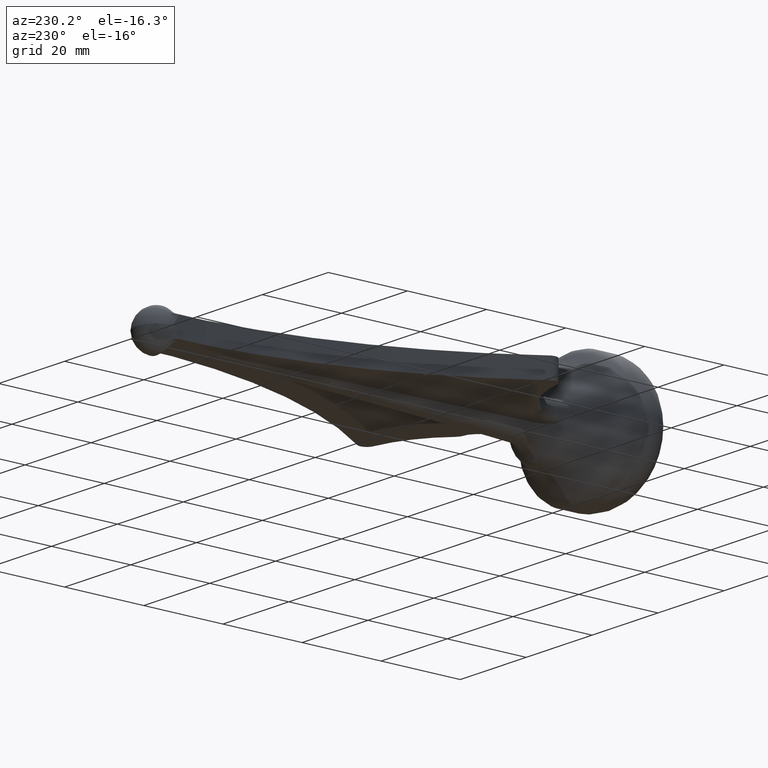
[diagram: clean part render]
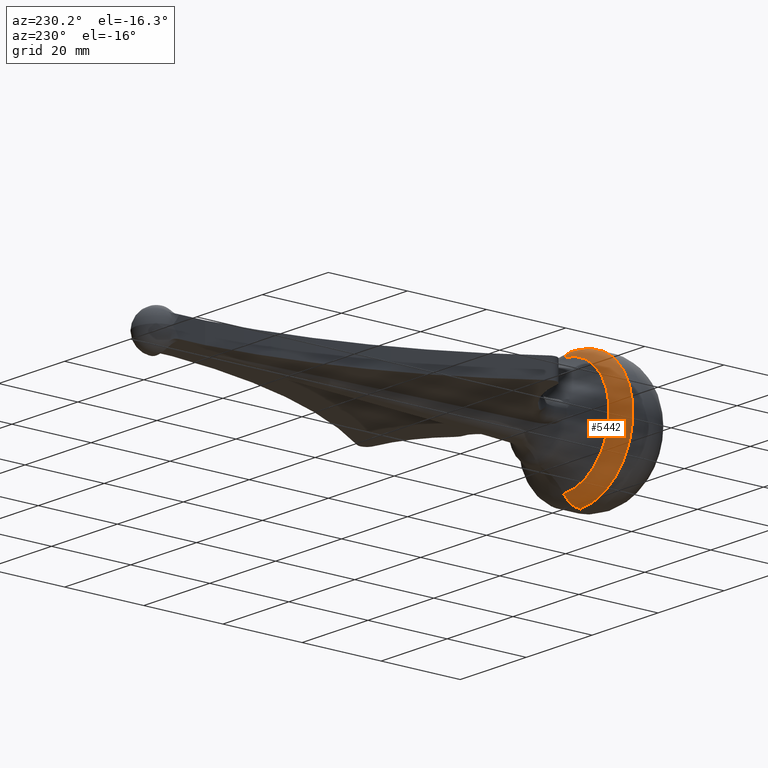
[diagram: same view with one face highlighted and labeled with its STEP entity id]
A machine part, auxiliary view. The second image highlights one B-rep face of the part: STEP entity #5442.
In plain terms, the highlighted toroidal blend (fillet) surface has major radius 11 mm and minor (blend) radius 5 mm.
Its self-contained STEP definition (entity closure, byte-faithful):
#256 = CIRCLE ( 'NONE', #6619, 4.999999999999999100 ) ;
#746 = EDGE_LOOP ( 'NONE', ( #6859, #11202, #3173, #9484 ) ) ;
#860 = CARTESIAN_POINT ( 'NONE',  ( 0.0000000000000000000, 12.98750096883720000, 16.00000000000000000 ) ) ;
#900 = DIRECTION ( 'NONE',  ( -1.000000000000000000, 0.0000000000000000000, 0.0000000000000000000 ) ) ;
#1040 = FACE_OUTER_BOUND ( 'NONE', #746, .T. ) ;
#2122 = CIRCLE ( 'NONE', #4521, 4.999999999999999100 ) ;
#2298 = DIRECTION ( 'NONE',  ( 0.0000000000000000000, 0.0000000000000000000, 1.000000000000000000 ) ) ;
#2560 = CARTESIAN_POINT ( 'NONE',  ( 0.0000000000000000000, 17.15495492610014900, 0.0000000000000000000 ) ) ;
#2737 = CIRCLE ( 'NONE', #6699, 13.76266673960028100 ) ;
#2742 = DIRECTION ( 'NONE',  ( -0.0000000000000000000, -1.000000000000000000, -0.0000000000000000000 ) ) ;
#2865 = EDGE_CURVE ( 'NONE', #5216, #7063, #2737, .T. ) ;
#3173 = ORIENTED_EDGE ( 'NONE', *, *, #9253, .T. ) ;
#3369 = AXIS2_PLACEMENT_3D ( 'NONE', #11018, #7699, #2298 ) ;
#3397 = CARTESIAN_POINT ( 'NONE',  ( 1.685440577038321800E-015, 17.15495492610014900, 13.76266673960027700 ) ) ;
#3463 = DIRECTION ( 'NONE',  ( 0.0000000000000000000, 0.0000000000000000000, 1.000000000000000000 ) ) ;
#3486 = DIRECTION ( 'NONE',  ( 1.000000000000000000, -0.0000000000000000000, 1.224646799147353200E-016 ) ) ;
#3850 = AXIS2_PLACEMENT_3D ( 'NONE', #8132, #2742, #8979 ) ;
#4246 = EDGE_CURVE ( 'NONE', #4950, #10707, #8620, .T. ) ;
#4521 = AXIS2_PLACEMENT_3D ( 'NONE', #8833, #3486, #9658 ) ;
#4792 = CARTESIAN_POINT ( 'NONE',  ( 0.0000000000000000000, 17.15495492610014900, -13.76266673960027700 ) ) ;
#4846 = CARTESIAN_POINT ( 'NONE',  ( 1.959434878635765100E-015, 12.98750096883720000, -16.00000000000000000 ) ) ;
#4950 = VERTEX_POINT ( 'NONE', #860 ) ;
#5216 = VERTEX_POINT ( 'NONE', #4792 ) ;
#5442 = ADVANCED_FACE ( 'NONE', ( #1040 ), #5994, .T. ) ;
#5994 = TOROIDAL_SURFACE ( 'NONE', #3369, 11.00000000000000900, 5.000000000000000000 ) ;
#6349 = CARTESIAN_POINT ( 'NONE',  ( 0.0000000000000000000, 12.98750096883720000, 11.00000000000000900 ) ) ;
#6619 = AXIS2_PLACEMENT_3D ( 'NONE', #6349, #900, #7249 ) ;
#6699 = AXIS2_PLACEMENT_3D ( 'NONE', #2560, #8819, #3463 ) ;
#6859 = ORIENTED_EDGE ( 'NONE', *, *, #7082, .F. ) ;
#7063 = VERTEX_POINT ( 'NONE', #3397 ) ;
#7082 = EDGE_CURVE ( 'NONE', #10707, #5216, #2122, .T. ) ;
#7249 = DIRECTION ( 'NONE',  ( 0.0000000000000000000, 0.0000000000000000000, 1.000000000000000000 ) ) ;
#7699 = DIRECTION ( 'NONE',  ( 0.0000000000000000000, 1.000000000000000000, 0.0000000000000000000 ) ) ;
#8132 = CARTESIAN_POINT ( 'NONE',  ( 0.0000000000000000000, 12.98750096883720000, 0.0000000000000000000 ) ) ;
#8620 = CIRCLE ( 'NONE', #3850, 16.00000000000000000 ) ;
#8819 = DIRECTION ( 'NONE',  ( 0.0000000000000000000, 1.000000000000000000, 0.0000000000000000000 ) ) ;
#8833 = CARTESIAN_POINT ( 'NONE',  ( 1.347111479062089600E-015, 12.98750096883720000, -11.00000000000000900 ) ) ;
#8979 = DIRECTION ( 'NONE',  ( 0.0000000000000000000, 0.0000000000000000000, 1.000000000000000000 ) ) ;
#9253 = EDGE_CURVE ( 'NONE', #4950, #7063, #256, .T. ) ;
#9484 = ORIENTED_EDGE ( 'NONE', *, *, #2865, .F. ) ;
#9658 = DIRECTION ( 'NONE',  ( 1.224646799147353500E-016, 0.0000000000000000000, -1.000000000000000000 ) ) ;
#10707 = VERTEX_POINT ( 'NONE', #4846 ) ;
#11018 = CARTESIAN_POINT ( 'NONE',  ( 0.0000000000000000000, 12.98750096883720000, 0.0000000000000000000 ) ) ;
#11202 = ORIENTED_EDGE ( 'NONE', *, *, #4246, .F. ) ;